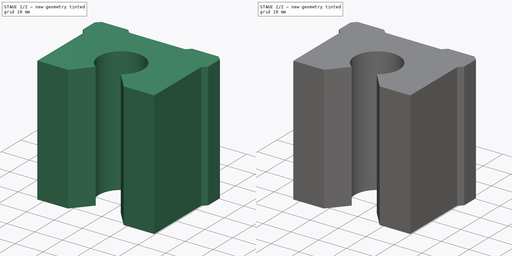
[diagram: build sequence overview — one tinted view per stage of 2, left to right]
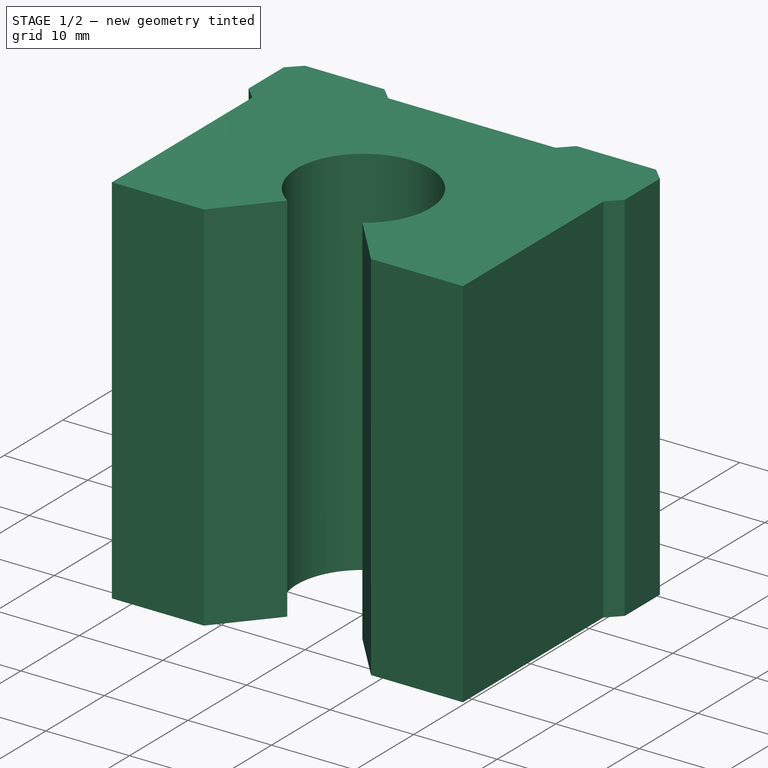
[diagram: stage 1 of 2 — iso view after this stage's code; geometry added in this stage tinted green]
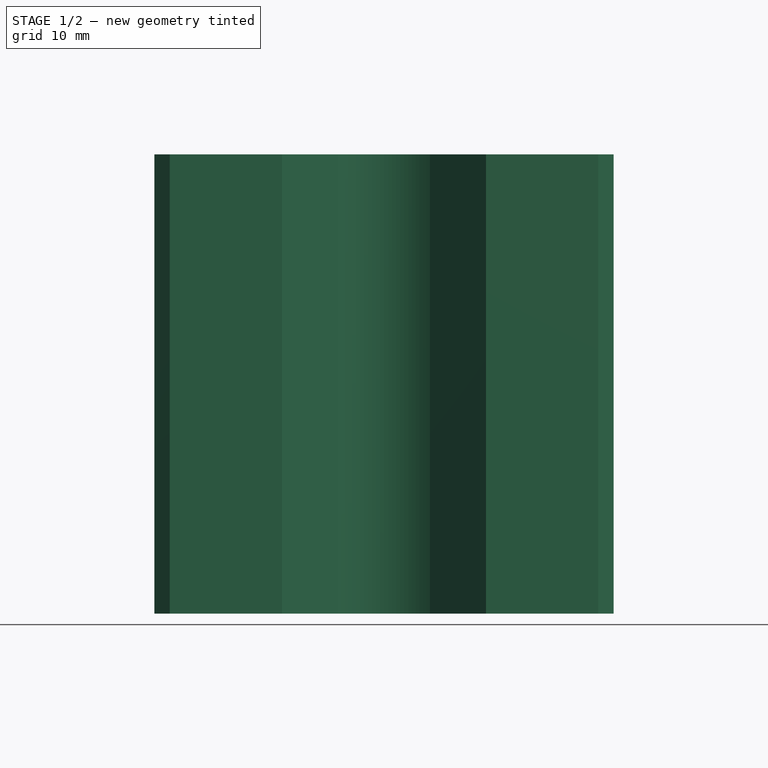
[diagram: stage 1 of 2 — front view after this stage's code; geometry added in this stage tinted green]
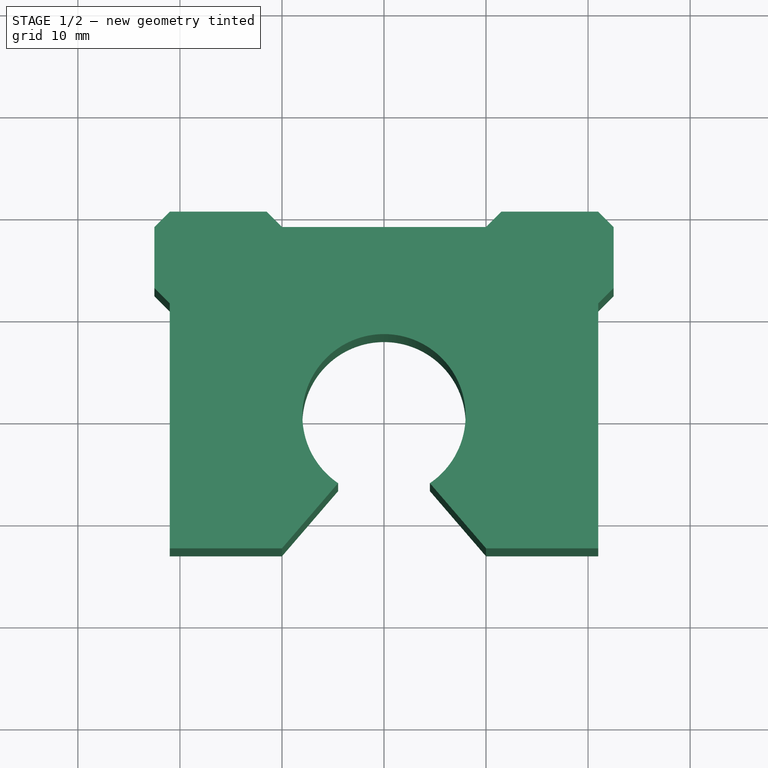
[diagram: stage 1 of 2 — top view after this stage's code; geometry added in this stage tinted green]
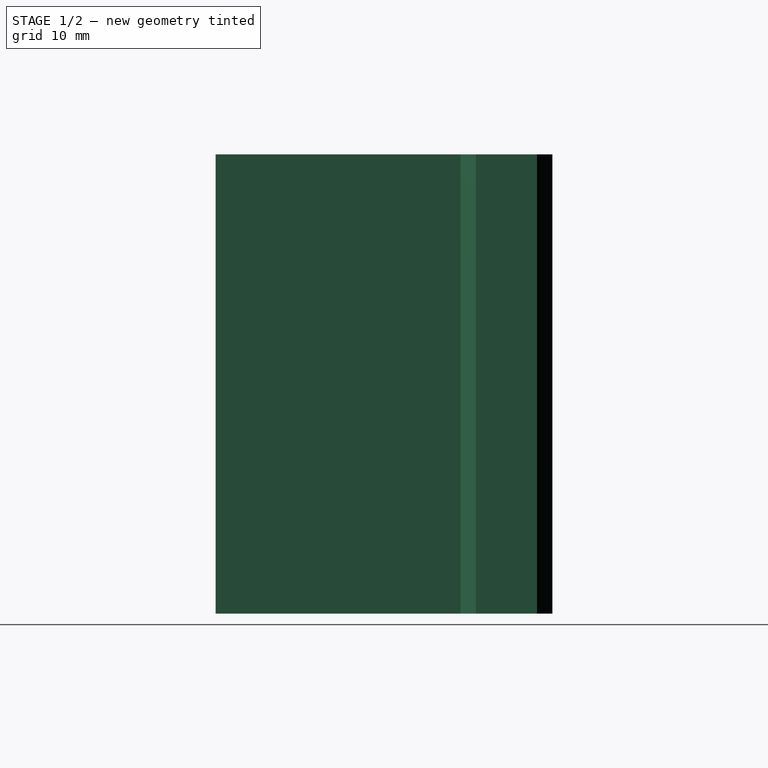
[diagram: stage 1 of 2 — right view after this stage's code; geometry added in this stage tinted green]
FCSTD DOCUMENT  (FreeCAD 0.19R24276 (Git))
Label: CARRIAGE_SBR16
License: All rights reserved
LicenseURL: http://en.wikipedia.org/wiki/All_rights_reserved
objects: PartDesign::CoordinateSystem×2, Sketcher::SketchObject×2, PartDesign::Pad×1, PartDesign::Pocket×1, PartDesign::Body×1, App::Part×1
note: 9 computed .brp shape members not serialized (recipe doc carries the construction recipe); baked Part::Feature solids carry a one-line shape summary decoded from their .brp

FEATURE [PartDesign::CoordinateSystem] LCS_0
  AttacherType = Attacher::AttachEngine3D
  MapMode = 2
  Support = -> [X_Axis]
FEATURE [PartDesign::CoordinateSystem] LCS_0001
  AttacherType = Attacher::AttachEngine3D
  MapMode = 2
  Support = -> [X_Axis001]
FEATURE [Sketcher::SketchObject] Sketch
  FullyConstrained = true
  MapMode = 5
  Support = -> [XY_Plane001]
  sketch-geometry (18):
    g0: ArcOfCircle CenterX=0 CenterY=0 CenterZ=0 NormalX=0 NormalY=0 NormalZ=1 AngleXU=0 Radius=8 StartAngle=5.3098 EndAngle=10.3982
    g1: LineSegment StartX=-10 StartY=-13 StartZ=0 EndX=-4.5 EndY=-6.61438 EndZ=0
    g2: LineSegment StartX=-10 StartY=-13 StartZ=0 EndX=-21 EndY=-13 EndZ=0
    g3: LineSegment StartX=-21 StartY=-13 StartZ=0 EndX=-21 EndY=11 EndZ=0
    g4: LineSegment StartX=-21 StartY=11 StartZ=0 EndX=-22.5 EndY=12.5 EndZ=0
    g5: LineSegment StartX=-22.5 StartY=12.5 StartZ=0 EndX=-22.5 EndY=18.5 EndZ=0
    g6: LineSegment StartX=-22.5 StartY=18.5 StartZ=0 EndX=-21 EndY=20 EndZ=0
    g7: LineSegment StartX=-21 StartY=20 StartZ=0 EndX=-11.5 EndY=20 EndZ=0
    g8: LineSegment StartX=-11.5 StartY=20 StartZ=0 EndX=-10 EndY=18.5 EndZ=0
    g9: LineSegment StartX=-10 StartY=18.5 StartZ=0 EndX=10 EndY=18.5 EndZ=0
    g10: LineSegment StartX=10 StartY=18.5 StartZ=0 EndX=11.5 EndY=20 EndZ=0
    g11: LineSegment StartX=11.5 StartY=20 StartZ=0 EndX=21 EndY=20 EndZ=0
    g12: LineSegment StartX=21 StartY=20 StartZ=0 EndX=22.5 EndY=18.5 EndZ=0
    g13: LineSegment StartX=22.5 StartY=18.5 StartZ=0 EndX=22.5 EndY=12.5 EndZ=0
    g14: LineSegment StartX=22.5 StartY=12.5 StartZ=0 EndX=21 EndY=11 EndZ=0
    g15: LineSegment StartX=21 StartY=11 StartZ=0 EndX=21 EndY=-13 EndZ=0
    g16: LineSegment StartX=21 StartY=-13 StartZ=0 EndX=10 EndY=-13 EndZ=0
    g17: LineSegment StartX=10 StartY=-13 StartZ=0 EndX=4.5 EndY=-6.61438 EndZ=0
  constraints (46):
    c: Coincident(g0,g-1)
    c: Diameter(g0) = 16
    c: Horizontal(g0,g0)
    c: Coincident(g1,g0)
    c: Coincident(g1,g2)
    c: Horizontal(g2)
    c: Coincident(g2,g3)
    c: Vertical(g3)
    c: Coincident(g3,g4)
    c: Coincident(g4,g5)
    c: Vertical(g5)
    c: Coincident(g5,g6)
    c: Coincident(g6,g7)
    c: Horizontal(g7)
    c: Coincident(g7,g8)
    c: Coincident(g8,g9)
    c: Coincident(g9,g10)
    c: Coincident(g10,g11)
    c: Coincident(g11,g12)
    c: Coincident(g12,g13)
    c: Coincident(g13,g14)
    c: Coincident(g14,g15)
    c: Coincident(g15,g16)
    c: Coincident(g16,g17)
    c: Coincident(g17,g0)
    c: DistanceY(g14,g11) = 9
    c: DistanceX(g5,g12) = 45
    c: Symmetric(g2,g15,g-2)
    c: DistanceX(g2,g15) = 42
    c: DistanceY(g15,g11) = 33
    c: Symmetric(g14,g3,g-2)
    c: Symmetric(g8,g9,g-2)
    c: Vertical(g11,g14)
    c: Equal(g12,g14)
    c: Angle(g15,g14) = 2.35619
    c: Angle(g10,g9) = 2.35619
    c: Horizontal(g9,g12)
    c: Symmetric(g10,g7,g-2)
    c: Symmetric(g4,g13,g-2)
    c: DistanceX(g1,g16) = 20
    c: Symmetric(g1,g16,g-2)
    c: Symmetric(g5,g12,g-2)
    c: DistanceX(g9,g9) = 20
    c: Symmetric(g6,g11,g-2)
    c: DistanceX(g0,g0) = 9
    c: DistanceY(g-1,g6) = 20
FEATURE [PartDesign::Pad] Pad
  Direction = (1,1,1)
  Length = 45
  Length2 = 100
  Midplane = true
  Profile = -> Sketch
  Refine = true
  Type = 0
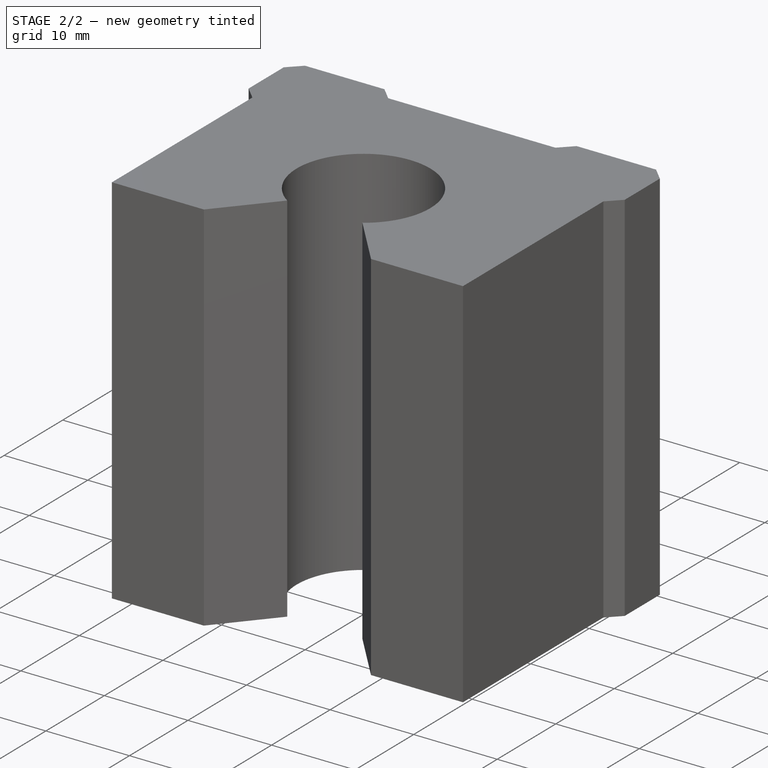
[diagram: stage 2 of 2 — iso view after this stage's code; geometry added in this stage tinted green]
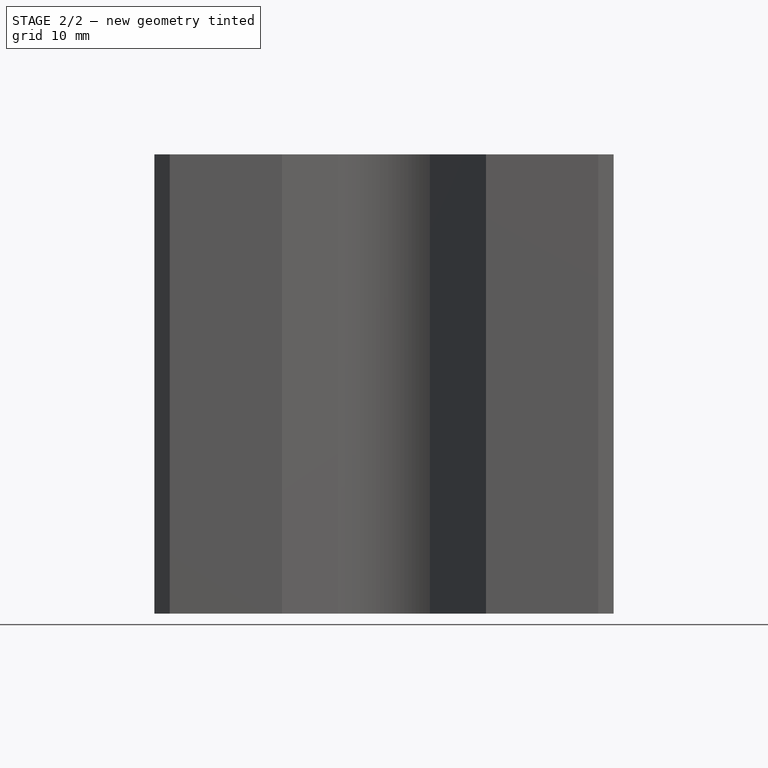
[diagram: stage 2 of 2 — front view after this stage's code; geometry added in this stage tinted green]
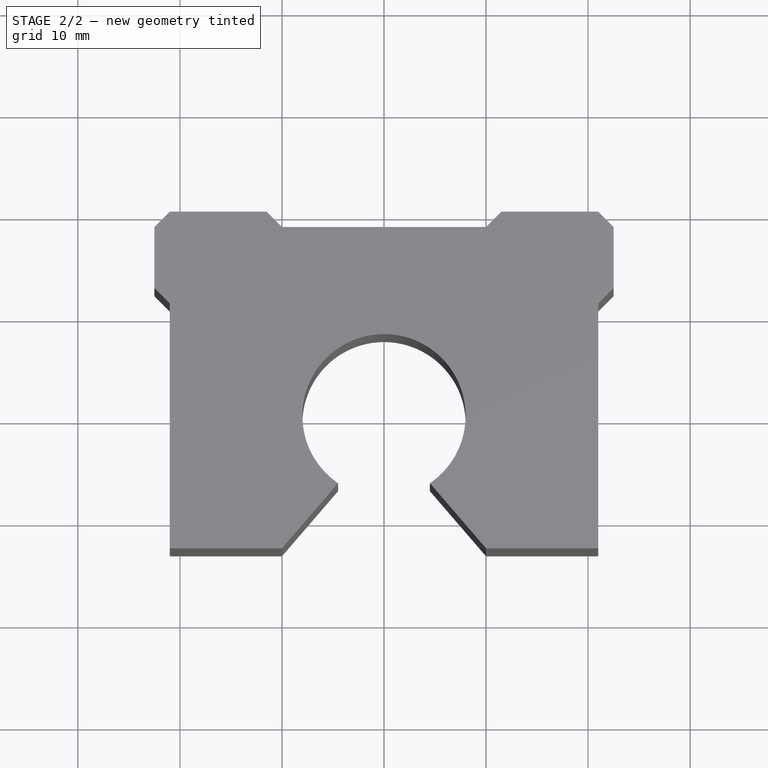
[diagram: stage 2 of 2 — top view after this stage's code; geometry added in this stage tinted green]
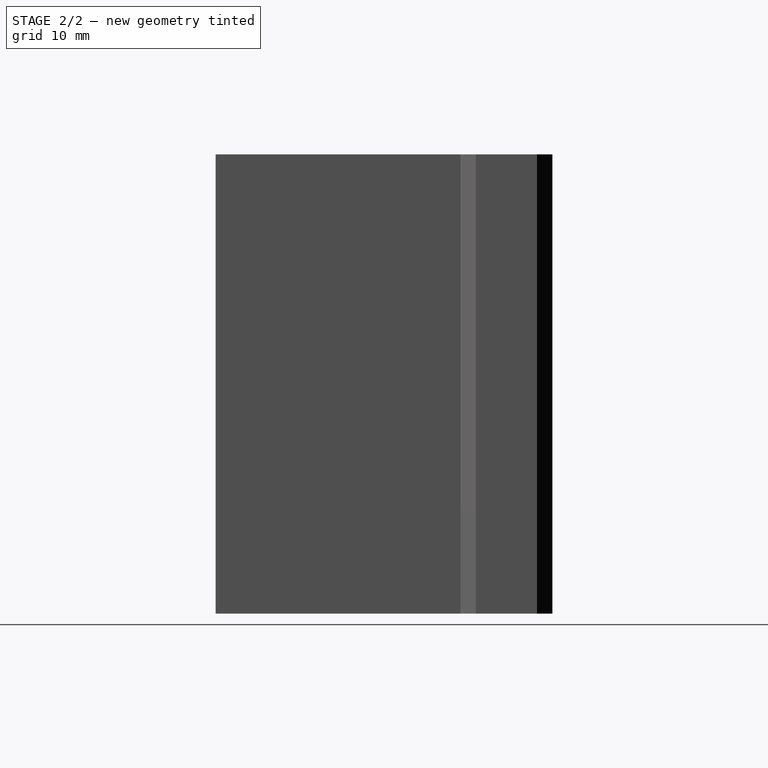
[diagram: stage 2 of 2 — right view after this stage's code; geometry added in this stage tinted green]
FEATURE [Sketcher::SketchObject] Sketch001
  AttachmentOffset = pos=(0,0,-20) rot=(0,0,1;0rad)
  FullyConstrained = true
  MapMode = 5
  Placement = pos=(0,20,4.4e-15) rot=(1,0,0;1.5708rad)
  Support = -> [XZ_Plane001]
  sketch-geometry (8):
    g0: LineSegment StartX=-16 StartY=15 StartZ=0 EndX=16 EndY=15 EndZ=0
    g1: LineSegment StartX=16 StartY=15 StartZ=0 EndX=16 EndY=-15 EndZ=0
    g2: LineSegment StartX=16 StartY=-15 StartZ=0 EndX=-16 EndY=-15 EndZ=0
    g3: LineSegment StartX=-16 StartY=-15 StartZ=0 EndX=-16 EndY=15 EndZ=0
    g4: Circle CenterX=-16 CenterY=15 CenterZ=0 NormalX=0 NormalY=0 NormalZ=1 AngleXU=0 Radius=3
    g5: Circle CenterX=16 CenterY=15 CenterZ=0 NormalX=0 NormalY=0 NormalZ=1 AngleXU=0 Radius=3
    g6: Circle CenterX=16 CenterY=-15 CenterZ=0 NormalX=0 NormalY=0 NormalZ=1 AngleXU=0 Radius=3
    g7: Circle CenterX=-16 CenterY=-15 CenterZ=0 NormalX=0 NormalY=0 NormalZ=1 AngleXU=0 Radius=3
  constraints (18):
    c: Coincident(g0,g1)
    c: Coincident(g1,g2)
    c: Coincident(g2,g3)
    c: Coincident(g3,g0)
    c: Horizontal(g0)
    c: Vertical(g3)
    c: Symmetric(g2,g1,g-2)
    c: Symmetric(g1,g0,g-1)
    c: Coincident(g4,g0)
    c: Coincident(g5,g0)
    c: Coincident(g6,g1)
    c: Coincident(g7,g2)
    c: Diameter(g7) = 6
    c: Equal(g7,g4)
    c: Equal(g7,g5)
    c: Equal(g7,g6)
    c: DistanceX(g0,g0) = 32
    c: DistanceY(g1,g1) = 30
FEATURE [PartDesign::Pocket] Pocket
  BaseFeature = -> Pad
  Length = 20
  Length2 = 100
  Profile = -> Sketch001
  Refine = true
  Reversed = true
  Type = 0
FEATURE [PartDesign::Body] Body
  Group = -> [LCS_0001,Sketch,Pad,Sketch001,Pocket]
  Origin = -> Origin001
  Tip = -> Pocket
FEATURE [App::Part] Part
  Group = -> [LCS_0,Body]
  Origin = -> Origin
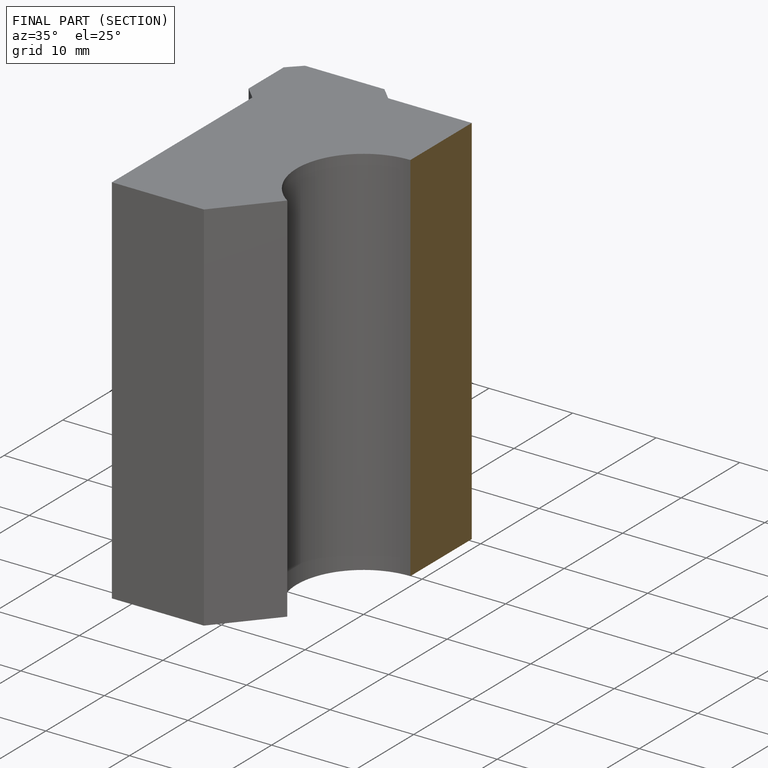
[diagram: finished part — half-section view (interior)]
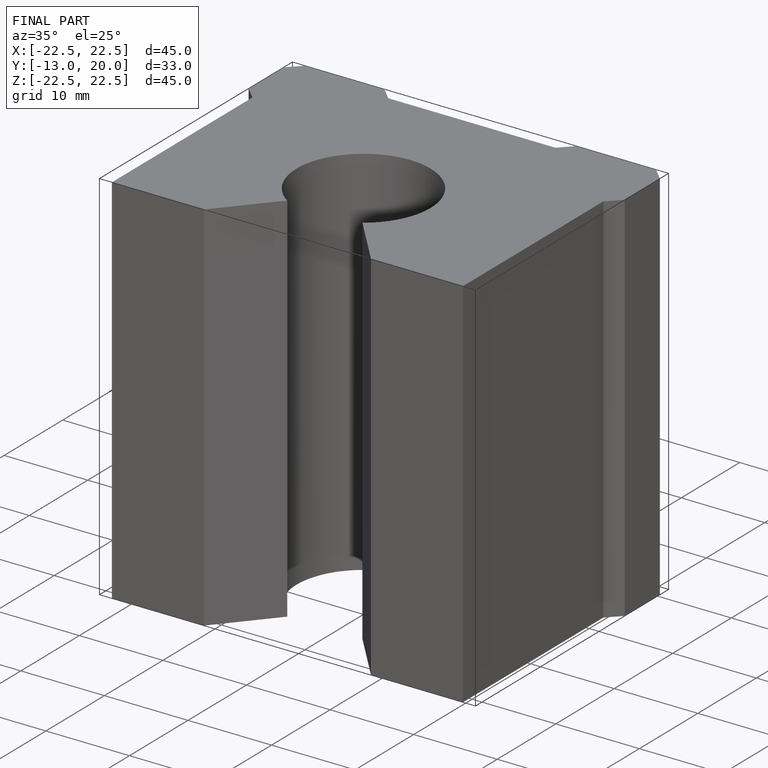
[diagram: finished part — iso view with bounding-box wireframe]
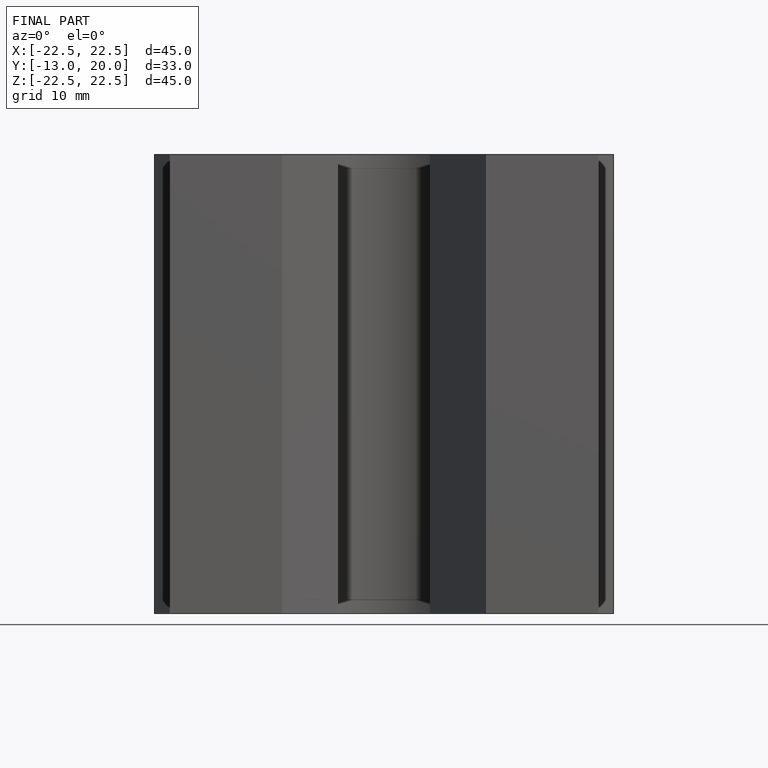
[diagram: finished part — front view with bounding-box wireframe]
